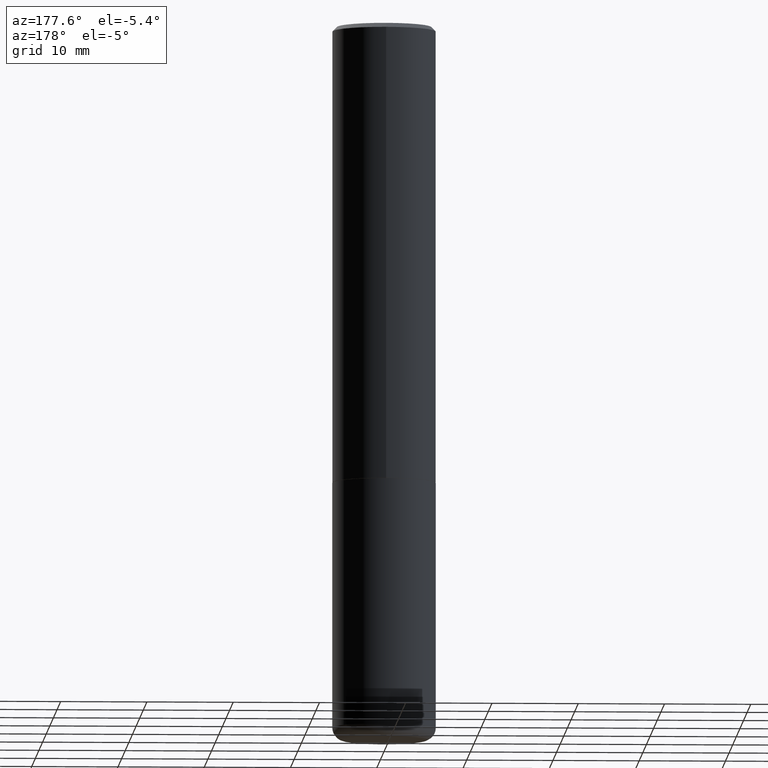
[diagram: clean part render]
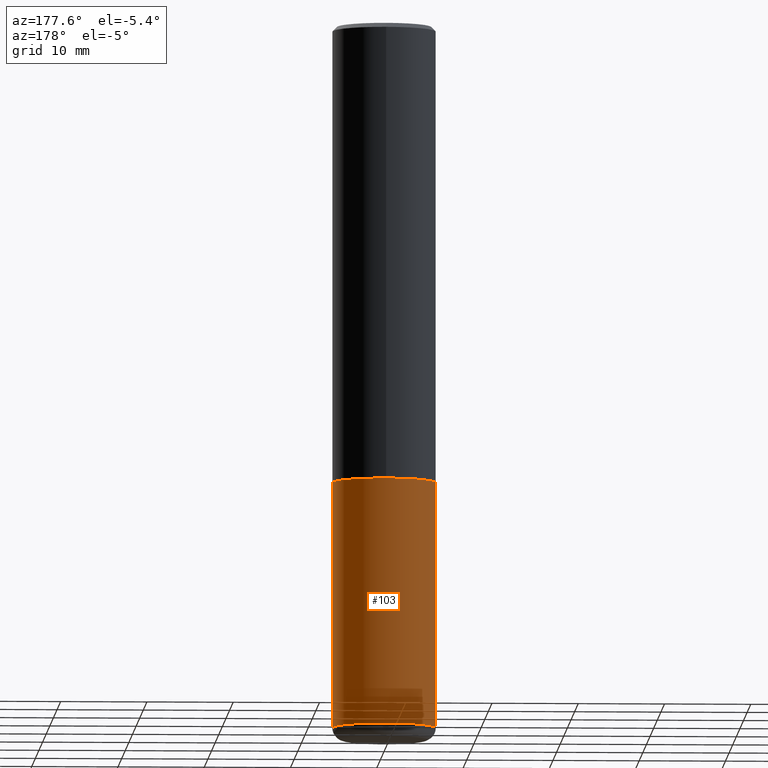
[diagram: same view with one face highlighted and labeled with its STEP entity id]
A machine part, auxiliary view. The second image highlights one B-rep face of the part: STEP entity #103.
In plain terms, the highlighted cylindrical surface (partial cylindrical patch) has radius 5.9995 mm, axis along (-0, 0, 1).
Its self-contained STEP definition (entity closure, byte-faithful):
#1 = CARTESIAN_POINT ( 'NONE',  ( 0.000000000000000000, 0.000000000000000000, 0.000000000000000000 ) ) ;
#5 = EDGE_CURVE ( 'NONE', #24, #235, #342, .T. ) ;
#24 = VERTEX_POINT ( 'NONE', #151 ) ;
#42 = DIRECTION ( 'NONE',  ( 1.000000000000000000, -6.982962677686265133E-15, 0.000000000000000000 ) ) ;
#43 = EDGE_CURVE ( 'NONE', #235, #402, #248, .T. ) ;
#52 = ORIENTED_EDGE ( 'NONE', *, *, #5, .T. ) ;
#66 = FACE_OUTER_BOUND ( 'NONE', #267, .T. ) ;
#73 = AXIS2_PLACEMENT_3D ( 'NONE', #1, #122, #95 ) ;
#95 = DIRECTION ( 'NONE',  ( 1.000000000000000000, -6.982962677686266711E-15, 4.876176775795936353E-29 ) ) ;
#103 = ADVANCED_FACE ( 'NONE', ( #66 ), #280, .T. ) ;
#108 = VECTOR ( 'NONE', #341, 39.37007874015748143 ) ;
#109 = ORIENTED_EDGE ( 'NONE', *, *, #43, .T. ) ;
#111 = ORIENTED_EDGE ( 'NONE', *, *, #130, .F. ) ;
#119 = CARTESIAN_POINT ( 'NONE',  ( 0.2361999999999999933, -1.649375784469496131E-15, 1.151752954443000088E-29 ) ) ;
#121 = LINE ( 'NONE', #119, #108 ) ;
#122 = DIRECTION ( 'NONE',  ( -2.445468806185136597E-29, 3.491481338843145583E-15, 1.000000000000000000 ) ) ;
#130 = EDGE_CURVE ( 'NONE', #339, #402, #169, .T. ) ;
#151 = CARTESIAN_POINT ( 'NONE',  ( 0.2361999999999999933, -1.285214280828161414E-14, -3.208600000000000119 ) ) ;
#154 = CARTESIAN_POINT ( 'NONE',  ( 7.846531211525630380E-29, -1.120276702381211762E-14, -3.208600000000000119 ) ) ;
#169 = CIRCLE ( 'NONE', #343, 0.2361999999999999933 ) ;
#181 = DIRECTION ( 'NONE',  ( -2.445468806185136597E-29, 3.491481338843145583E-15, 1.000000000000000000 ) ) ;
#210 = DIRECTION ( 'NONE',  ( -2.445468806185136877E-29, 3.491481338843145188E-15, 1.000000000000000000 ) ) ;
#222 = DIRECTION ( 'NONE',  ( 1.000000000000000000, -6.982962677686264344E-15, 0.000000000000000000 ) ) ;
#235 = VERTEX_POINT ( 'NONE', #417 ) ;
#248 = LINE ( 'NONE', #254, #389 ) ;
#254 = CARTESIAN_POINT ( 'NONE',  ( -0.2361999999999999933, 1.678301941865356591E-15, -1.161852468318208757E-29 ) ) ;
#267 = EDGE_LOOP ( 'NONE', ( #52, #109, #111, #308 ) ) ;
#280 = CYLINDRICAL_SURFACE ( 'NONE', #73, 0.2361999999999999933 ) ;
#294 = AXIS2_PLACEMENT_3D ( 'NONE', #154, #181, #222 ) ;
#306 = CARTESIAN_POINT ( 'NONE',  ( 0.2361999999999999933, -8.934700746099602364E-15, -2.086600000000000232 ) ) ;
#307 = EDGE_CURVE ( 'NONE', #24, #339, #121, .T. ) ;
#308 = ORIENTED_EDGE ( 'NONE', *, *, #307, .F. ) ;
#339 = VERTEX_POINT ( 'NONE', #306 ) ;
#341 = DIRECTION ( 'NONE',  ( -2.445468806185136877E-29, 3.491481338843145188E-15, 1.000000000000000000 ) ) ;
#342 = CIRCLE ( 'NONE', #294, 0.2362000000000000210 ) ;
#343 = AXIS2_PLACEMENT_3D ( 'NONE', #388, #355, #42 ) ;
#355 = DIRECTION ( 'NONE',  ( -2.445468806185136597E-29, 3.491481338843145583E-15, 1.000000000000000000 ) ) ;
#388 = CARTESIAN_POINT ( 'NONE',  ( 5.102715210985906276E-29, -7.285324961630107416E-15, -2.086600000000000232 ) ) ;
#389 = VECTOR ( 'NONE', #210, 39.37007874015748143 ) ;
#395 = CARTESIAN_POINT ( 'NONE',  ( -0.2361999999999999933, -7.565744050855755335E-15, -2.086600000000000232 ) ) ;
#402 = VERTEX_POINT ( 'NONE', #395 ) ;
#417 = CARTESIAN_POINT ( 'NONE',  ( -0.2361999999999999933, -9.524465081946761225E-15, -3.208600000000000119 ) ) ;